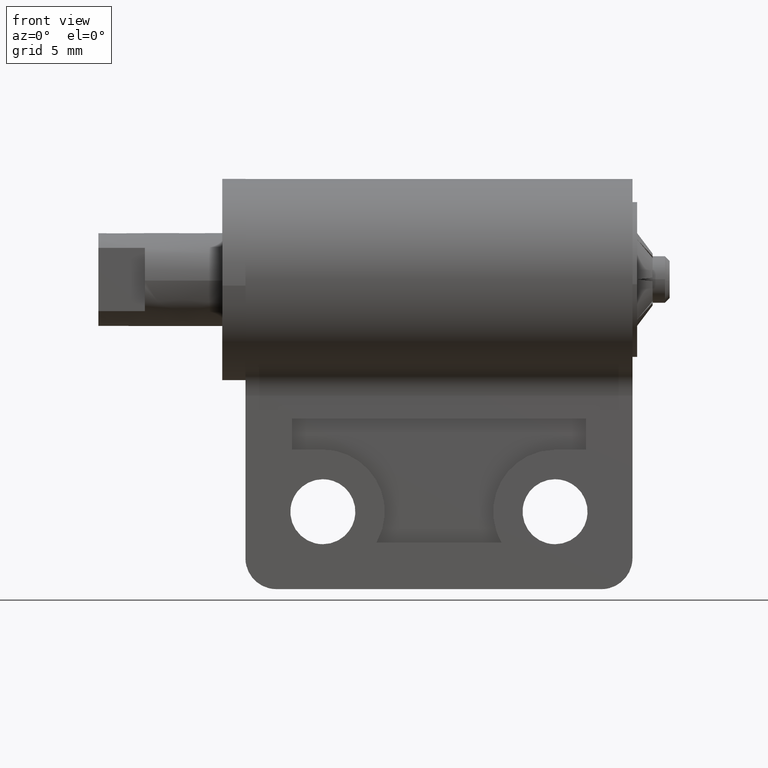
[diagram: clean part render]
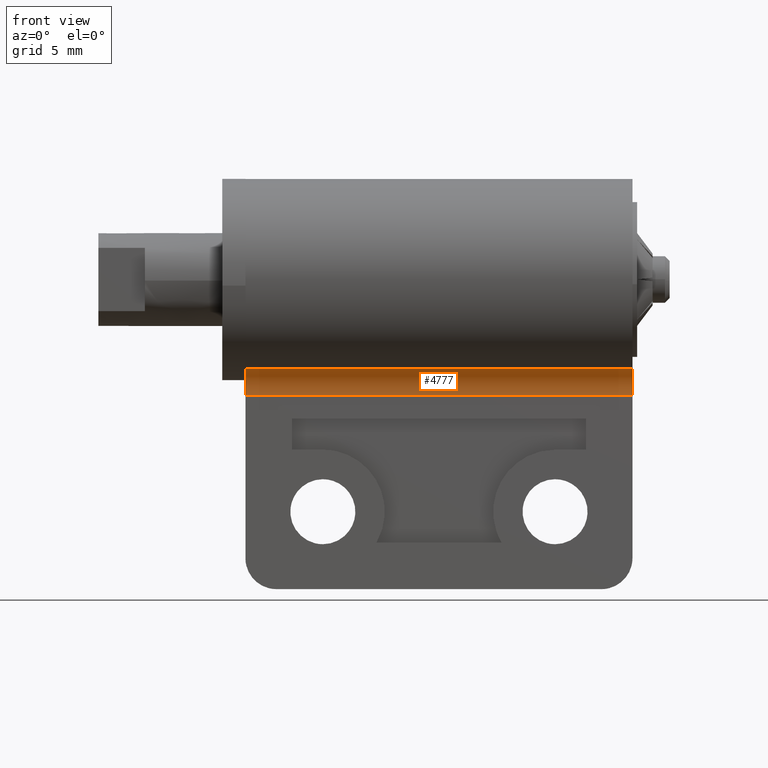
[diagram: same view with one face highlighted and labeled with its STEP entity id]
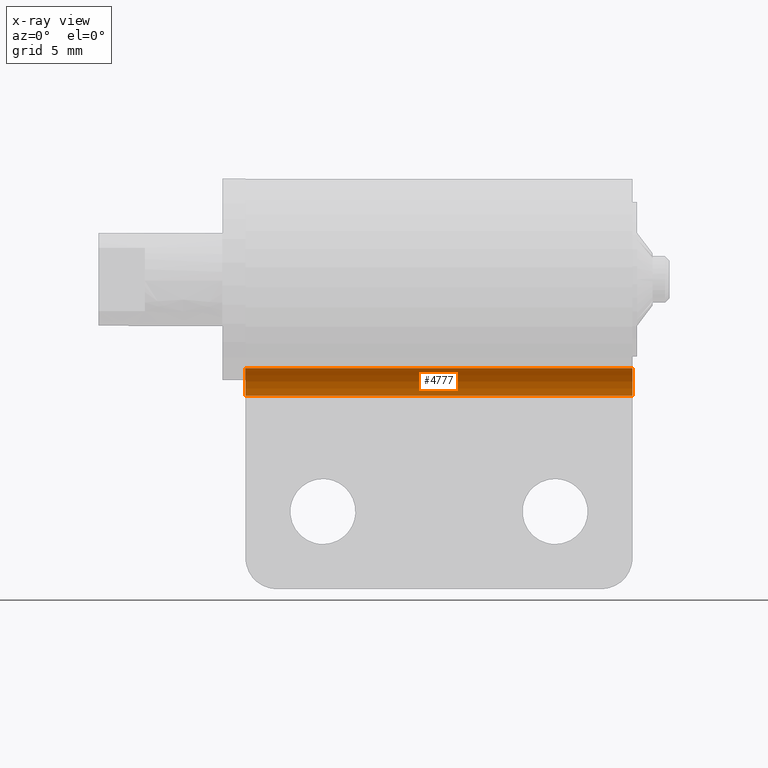
[diagram: x-ray of the same camera — body ghosted, the highlighted face saturated]
A machine part, front view. The second image highlights one B-rep face of the part: STEP entity #4777.
The next image is the same camera in x-ray: the body ghosted, the highlighted face saturated — about 0% of this face is hidden behind the body in this view.
In plain terms, the highlighted face is a freeform B-spline surface patch.
Its self-contained STEP definition (entity closure, byte-faithful):
#4549=CARTESIAN_POINT('',(31.500000000000000,-2.0,-7.500000000000000));
#4550=VERTEX_POINT('',#4549);
#4579=CARTESIAN_POINT('',(31.500000000000000,-3.058823527436040,-5.735294118700780));
#4580=VERTEX_POINT('',#4579);
#4600=CARTESIAN_POINT('',(31.500000000000000,-2.0,-7.500000000000000));
#4601=CARTESIAN_POINT('',(31.499999999999996,-2.000000000000000,-6.300000001522625));
#4602=CARTESIAN_POINT('',(31.500000000000000,-3.058823527436039,-5.735294118700779));
#4610=(BOUNDED_CURVE()B_SPLINE_CURVE(2,(#4600,#4601,#4602),.UNSPECIFIED.,.F.,.U.)CURVE()GEOMETRIC_REPRESENTATION_ITEM()QUASI_UNIFORM_CURVE()RATIONAL_B_SPLINE_CURVE((1.0,0.857492926000553,1.0))REPRESENTATION_ITEM(''));
#4611=EDGE_CURVE('',#4550,#4580,#4610,.T.);
#4635=CARTESIAN_POINT('',(6.500000000000000,-2.0,-7.500000000000000));
#4636=VERTEX_POINT('',#4635);
#4642=CARTESIAN_POINT('',(6.500000000000000,-3.058823527436040,-5.735294118700780));
#4643=VERTEX_POINT('',#4642);
#4644=CARTESIAN_POINT('',(6.500000000000000,-2.0,-7.500000000000000));
#4645=CARTESIAN_POINT('',(6.500000000000000,-2.000000000000000,-6.300000001522625));
#4646=CARTESIAN_POINT('',(6.500000000000000,-3.058823527436039,-5.735294118700779));
#4654=(BOUNDED_CURVE()B_SPLINE_CURVE(2,(#4644,#4645,#4646),.UNSPECIFIED.,.F.,.U.)CURVE()GEOMETRIC_REPRESENTATION_ITEM()QUASI_UNIFORM_CURVE()RATIONAL_B_SPLINE_CURVE((1.0,0.857492926000553,1.0))REPRESENTATION_ITEM(''));
#4655=EDGE_CURVE('',#4636,#4643,#4654,.T.);
#4749=CARTESIAN_POINT('',(5.874999999999998,-3.107604373780384,-5.710131276795950));
#4750=CARTESIAN_POINT('',(32.140625000000000,-3.107604373780384,-5.710131276795950));
#4751=CARTESIAN_POINT('',(5.874999999999998,-1.935341035214061,-6.294600217200431));
#4752=CARTESIAN_POINT('',(32.140625000000000,-1.935341035214061,-6.294600217200431));
#4753=CARTESIAN_POINT('',(5.874999999999998,-2.002641529094197,-7.602757669790785));
#4754=CARTESIAN_POINT('',(32.140625000000000,-2.002641529094197,-7.602757669790785));
#4762=(BOUNDED_SURFACE()B_SPLINE_SURFACE(1,2,((#4749,#4751,#4753),(#4750,#4752,#4754)),.UNSPECIFIED.,.F.,.F.,.U.)B_SPLINE_SURFACE_WITH_KNOTS((2,2),(3,3),(0.0,26.265625000000000),(0.0,2.386606739064272),.UNSPECIFIED.)GEOMETRIC_REPRESENTATION_ITEM()RATIONAL_B_SPLINE_SURFACE(((1.0,0.833169199101226,0.991936443860608),(1.0,0.833169199101226,0.991936443860608)))REPRESENTATION_ITEM('')SURFACE());
#4763=ORIENTED_EDGE('',*,*,#4611,.T.);
#4764=CARTESIAN_POINT('',(6.500000000000000,-3.058823527436040,-5.735294118700780));
#4765=CARTESIAN_POINT('',(31.500000000000000,-3.058823527436040,-5.735294118700780));
#4766=QUASI_UNIFORM_CURVE('',1,(#4764,#4765),.UNSPECIFIED.,.F.,.U.);
#4767=EDGE_CURVE('',#4643,#4580,#4766,.T.);
#4768=ORIENTED_EDGE('',*,*,#4767,.F.);
#4769=ORIENTED_EDGE('',*,*,#4655,.F.);
#4770=CARTESIAN_POINT('',(6.500000000000000,-2.0,-7.500000000000000));
#4771=CARTESIAN_POINT('',(31.500000000000000,-2.0,-7.500000000000000));
#4772=QUASI_UNIFORM_CURVE('',1,(#4770,#4771),.UNSPECIFIED.,.F.,.U.);
#4773=EDGE_CURVE('',#4636,#4550,#4772,.T.);
#4774=ORIENTED_EDGE('',*,*,#4773,.T.);
#4775=EDGE_LOOP('',(#4763,#4768,#4769,#4774));
#4776=FACE_OUTER_BOUND('',#4775,.T.);
#4777=ADVANCED_FACE('',(#4776),#4762,.F.);